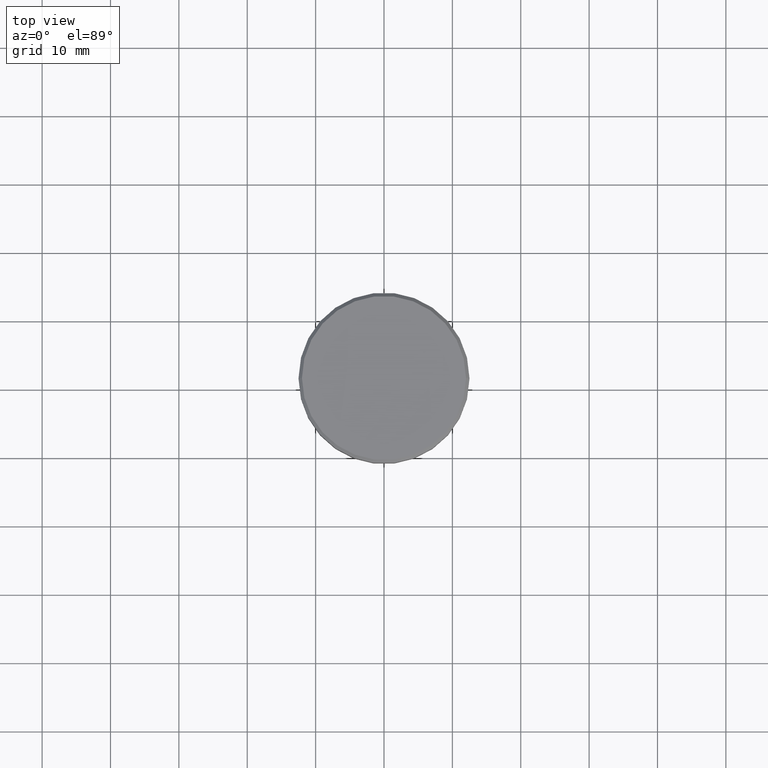
[diagram: clean part render]
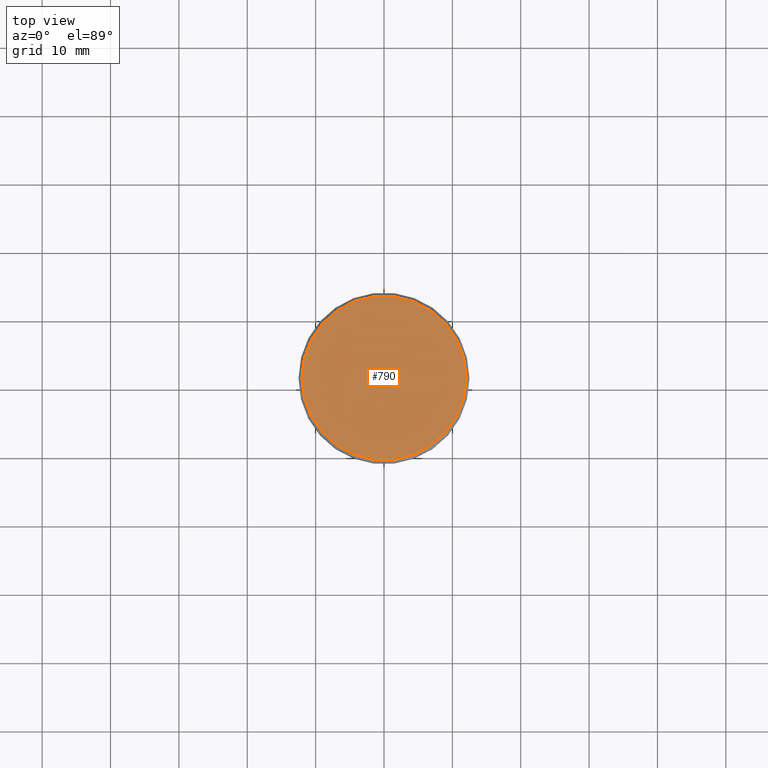
[diagram: same view with one face highlighted and labeled with its STEP entity id]
A machine part, top view. The second image highlights one B-rep face of the part: STEP entity #790.
In plain terms, the highlighted planar face has unit normal (0, -0, 1).
Its self-contained STEP definition (entity closure, byte-faithful):
#53 = CIRCLE ( 'NONE', #933, 11.99999999999999645 ) ;
#106 = EDGE_CURVE ( 'NONE', #389, #501, #53, .T. ) ;
#157 = EDGE_LOOP ( 'NONE', ( #543, #849 ) ) ;
#211 = DIRECTION ( 'NONE',  ( 0.000000000000000000, -0.000000000000000000, 1.000000000000000000 ) ) ;
#273 = CIRCLE ( 'NONE', #595, 11.99999999999999645 ) ;
#337 = DIRECTION ( 'NONE',  ( 1.000000000000000000, 0.000000000000000000, 0.000000000000000000 ) ) ;
#381 = EDGE_CURVE ( 'NONE', #501, #389, #273, .T. ) ;
#383 = FACE_OUTER_BOUND ( 'NONE', #157, .T. ) ;
#389 = VERTEX_POINT ( 'NONE', #580 ) ;
#463 = PLANE ( 'NONE',  #1088 ) ;
#501 = VERTEX_POINT ( 'NONE', #532 ) ;
#532 = CARTESIAN_POINT ( 'NONE',  ( -11.99999999999999645, 0.000000000000000000, 0.000000000000000000 ) ) ;
#543 = ORIENTED_EDGE ( 'NONE', *, *, #381, .T. ) ;
#570 = DIRECTION ( 'NONE',  ( 1.000000000000000000, 0.000000000000000000, 0.000000000000000000 ) ) ;
#580 = CARTESIAN_POINT ( 'NONE',  ( 11.99999999999999645, 1.500192328955507537E-15, 0.000000000000000000 ) ) ;
#595 = AXIS2_PLACEMENT_3D ( 'NONE', #879, #1158, #337 ) ;
#643 = CARTESIAN_POINT ( 'NONE',  ( 0.000000000000000000, 0.000000000000000000, 0.000000000000000000 ) ) ;
#770 = DIRECTION ( 'NONE',  ( -0.000000000000000000, -0.000000000000000000, 1.000000000000000000 ) ) ;
#790 = ADVANCED_FACE ( 'NONE', ( #383 ), #463, .T. ) ;
#849 = ORIENTED_EDGE ( 'NONE', *, *, #106, .T. ) ;
#879 = CARTESIAN_POINT ( 'NONE',  ( 0.000000000000000000, 0.000000000000000000, 0.000000000000000000 ) ) ;
#933 = AXIS2_PLACEMENT_3D ( 'NONE', #643, #770, #570 ) ;
#948 = DIRECTION ( 'NONE',  ( 1.000000000000000000, 0.000000000000000000, 0.000000000000000000 ) ) ;
#1022 = CARTESIAN_POINT ( 'NONE',  ( 0.000000000000000000, 0.000000000000000000, 0.000000000000000000 ) ) ;
#1088 = AXIS2_PLACEMENT_3D ( 'NONE', #1022, #211, #948 ) ;
#1158 = DIRECTION ( 'NONE',  ( -0.000000000000000000, -0.000000000000000000, 1.000000000000000000 ) ) ;